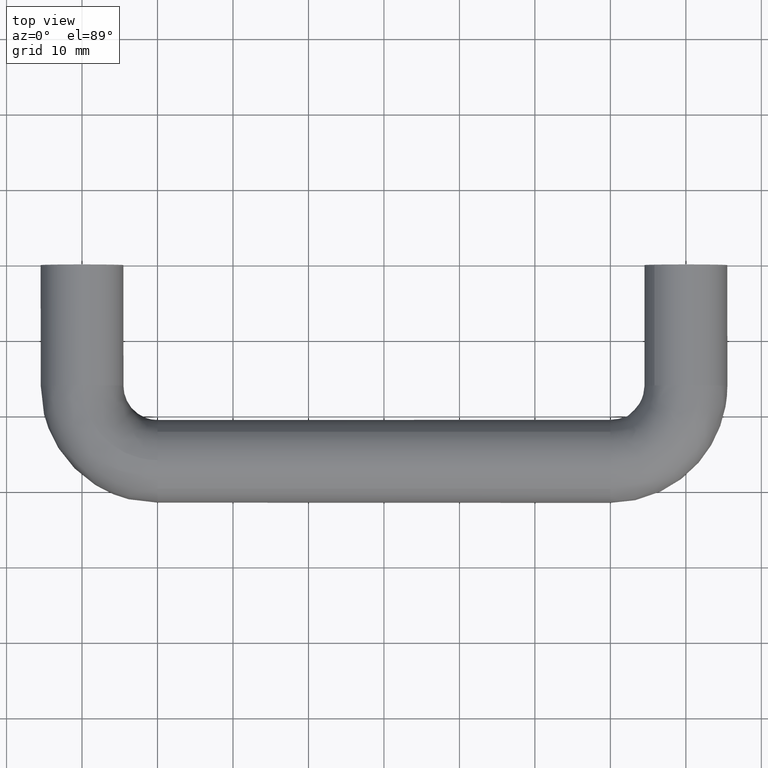
[diagram: clean part render]
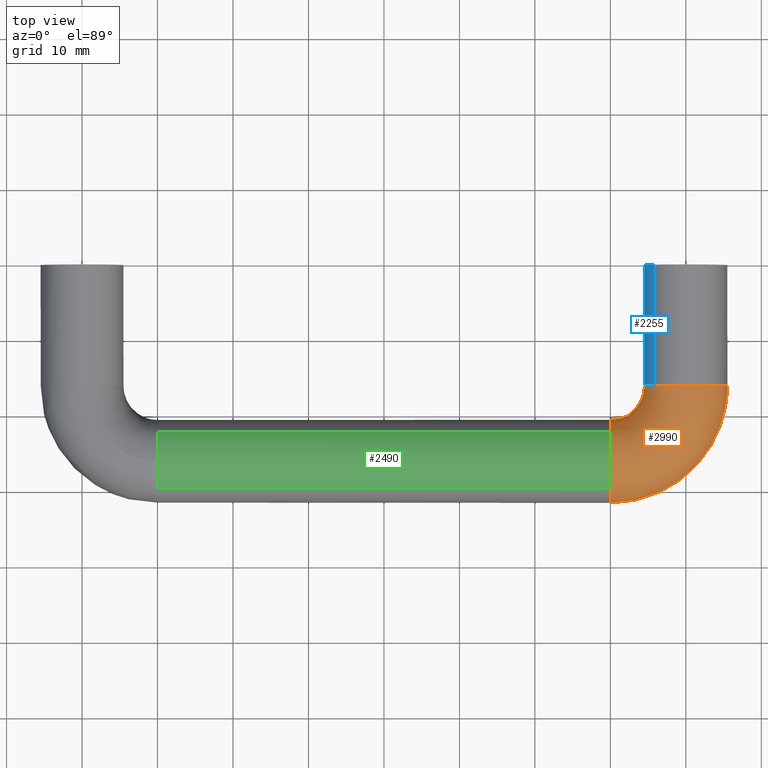
[diagram: same view with three faces highlighted in distinct colors, each labeled with its STEP entity id]
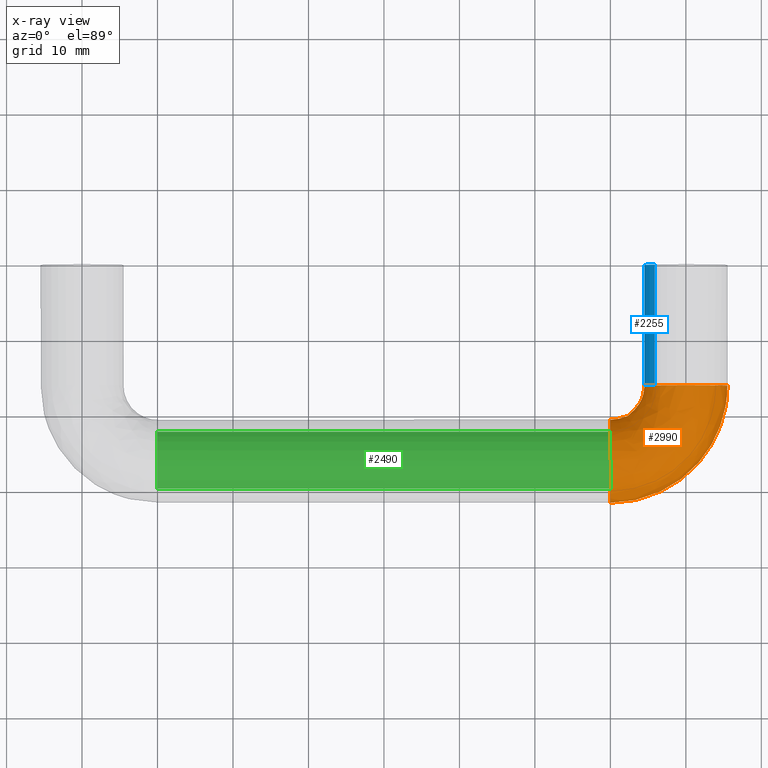
[diagram: x-ray of the same camera — body ghosted, the three highlighted faces saturated]
A machine part, top view with three faces highlighted in distinct colors.
The next image is the same camera in x-ray (body ghosted, the three faces saturated) — at least one of them is partly hidden behind the body in this view.
Their STEP definitions:

[orange] entity #2990 — the highlighted face is a freeform B-spline surface patch.
#2066=CARTESIAN_POINT('',(80.0,-15.999999999971200,5.500000000000000));
#2067=VERTEX_POINT('',#2066);
#2068=CARTESIAN_POINT('',(75.850893732922657,-15.999999999971211,3.610390170672431));
#2069=VERTEX_POINT('',#2068);
#2070=CARTESIAN_POINT('',(80.0,-15.999999999971200,5.500000000000000));
#2071=CARTESIAN_POINT('',(77.495158380550052,-15.999999999971198,5.500000000000000));
#2072=CARTESIAN_POINT('',(75.850893732922657,-15.999999999971216,3.610390170672431));
#2080=(BOUNDED_CURVE()B_SPLINE_CURVE(2,(#2070,#2071,#2072),.UNSPECIFIED.,.F.,.U.)B_SPLINE_CURVE_WITH_KNOTS((3,3),(0.500000000000000,0.635463084393659),.UNSPECIFIED.)CURVE()GEOMETRIC_REPRESENTATION_ITEM()RATIONAL_B_SPLINE_CURVE((1.0,0.841295124726171,0.854579464755573))REPRESENTATION_ITEM(''));
#2081=EDGE_CURVE('',#2067,#2069,#2080,.T.);
#2083=CARTESIAN_POINT('',(85.498263041054457,-15.999999999981890,-0.138215525085154));
#2084=VERTEX_POINT('',#2083);
#2085=CARTESIAN_POINT('',(85.498263041054457,-15.999999999981890,-0.138215525085154));
#2086=CARTESIAN_POINT('',(85.500000000000000,-15.999999999971200,-0.069118676825455));
#2087=CARTESIAN_POINT('',(85.500000000000000,-15.999999999971200,0.0));
#2088=CARTESIAN_POINT('',(85.500000000000000,-15.999999999971205,5.500000000000001));
#2089=CARTESIAN_POINT('',(80.0,-15.999999999971200,5.500000000000000));
#2097=(BOUNDED_CURVE()B_SPLINE_CURVE(2,(#2085,#2086,#2087,#2088,#2089),.UNSPECIFIED.,.F.,.U.)B_SPLINE_CURVE_WITH_KNOTS((3,2,3),(0.245579891760464,0.250000000000000,0.500000000000000),.UNSPECIFIED.)CURVE()GEOMETRIC_REPRESENTATION_ITEM()RATIONAL_B_SPLINE_CURVE((0.989826157660457,0.994821521080874,1.0,0.707106781186548,1.0))REPRESENTATION_ITEM(''));
#2098=EDGE_CURVE('',#2084,#2067,#2097,.T.);
#2115=CARTESIAN_POINT('',(79.861784474649951,-16.000000000414630,-5.498263041047800));
#2116=VERTEX_POINT('',#2115);
#2130=CARTESIAN_POINT('',(74.525320908992796,-15.999999999971200,0.527151638988686));
#2131=VERTEX_POINT('',#2130);
#2132=CARTESIAN_POINT('',(74.525320908992796,-15.999999999971198,0.527151638988686));
#2133=CARTESIAN_POINT('',(74.500000000000014,-15.999999999971200,0.264183944796869));
#2134=CARTESIAN_POINT('',(74.500000000000000,-15.999999999971200,0.0));
#2135=CARTESIAN_POINT('',(74.500000000000000,-15.999999999971196,-5.363478318190148));
#2136=CARTESIAN_POINT('',(79.861784474649951,-16.000000000414630,-5.498263041047800));
#2144=(BOUNDED_CURVE()B_SPLINE_CURVE(2,(#2132,#2133,#2134,#2135,#2136),.UNSPECIFIED.,.F.,.U.)B_SPLINE_CURVE_WITH_KNOTS((3,2,3),(0.733348904757510,0.750000000000000,0.995579891743605),.UNSPECIFIED.)CURVE()GEOMETRIC_REPRESENTATION_ITEM()RATIONAL_B_SPLINE_CURVE((0.963582689676648,0.980492028470631,1.0,0.712285260125425,0.989826157622351))REPRESENTATION_ITEM(''));
#2145=EDGE_CURVE('',#2131,#2116,#2144,.T.);
#2225=CARTESIAN_POINT('',(75.850893732922657,-15.999999999971216,3.610390170672431));
#2226=CARTESIAN_POINT('',(74.694208117647236,-15.999999999971200,2.281112361765168));
#2227=CARTESIAN_POINT('',(74.525320908992796,-15.999999999971200,0.527151638988686));
#2235=(BOUNDED_CURVE()B_SPLINE_CURVE(2,(#2225,#2226,#2227),.UNSPECIFIED.,.F.,.U.)B_SPLINE_CURVE_WITH_KNOTS((3,3),(0.635463084393659,0.733348904757509),.UNSPECIFIED.)CURVE()GEOMETRIC_REPRESENTATION_ITEM()RATIONAL_B_SPLINE_CURVE((0.854579464755573,0.864178748040689,0.963582689676646))REPRESENTATION_ITEM(''));
#2236=EDGE_CURVE('',#2069,#2131,#2235,.T.);
#2286=CARTESIAN_POINT('',(70.000000000080860,-31.498263041026028,-0.138215525071287));
#2287=VERTEX_POINT('',#2286);
#2288=CARTESIAN_POINT('',(70.0,-29.695980075800492,4.073049383333469));
#2289=VERTEX_POINT('',#2288);
#2290=CARTESIAN_POINT('',(70.000000000080860,-31.498263041026036,-0.138215525071287));
#2291=CARTESIAN_POINT('',(70.0,-31.499999999971251,-0.069118676811581));
#2292=CARTESIAN_POINT('',(70.0,-31.499999999971251,0.0));
#2293=CARTESIAN_POINT('',(69.999999999999986,-31.499999999971248,2.436039598125889));
#2294=CARTESIAN_POINT('',(70.0,-29.695980075800481,4.073049383333469));
#2302=(BOUNDED_CURVE()B_SPLINE_CURVE(2,(#2290,#2291,#2292,#2293,#2294),.UNSPECIFIED.,.F.,.U.)B_SPLINE_CURVE_WITH_KNOTS((3,2,3),(0.245579891761347,0.250000000000000,0.382319047793504),.UNSPECIFIED.)CURVE()GEOMETRIC_REPRESENTATION_ITEM()RATIONAL_B_SPLINE_CURVE((0.989826157662452,0.994821521081908,1.0,0.844978592725718,0.854055465436572))REPRESENTATION_ITEM(''));
#2303=EDGE_CURVE('',#2287,#2289,#2302,.T.);
#2361=CARTESIAN_POINT('',(70.0,-22.144999046176800,3.922877470205262));
#2362=VERTEX_POINT('',#2361);
#2368=CARTESIAN_POINT('',(70.000000000679393,-25.861784474253859,-5.498263041038566));
#2369=VERTEX_POINT('',#2368);
#2370=CARTESIAN_POINT('',(70.0,-22.144999046176789,3.922877470205263));
#2371=CARTESIAN_POINT('',(69.999999999999986,-20.499999999971248,2.306341409431673));
#2372=CARTESIAN_POINT('',(70.0,-20.499999999971251,0.0));
#2373=CARTESIAN_POINT('',(70.0,-20.499999999971244,-5.363478317473301));
#2374=CARTESIAN_POINT('',(70.000000000679393,-25.861784474253859,-5.498263041038567));
#2382=(BOUNDED_CURVE()B_SPLINE_CURVE(2,(#2370,#2371,#2372,#2373,#2374),.UNSPECIFIED.,.F.,.U.)B_SPLINE_CURVE_WITH_KNOTS((3,2,3),(0.623683242420083,0.750000000000000,0.995579891720226),.UNSPECIFIED.)CURVE()GEOMETRIC_REPRESENTATION_ITEM()RATIONAL_B_SPLINE_CURVE((0.853569641251226,0.852010713129358,1.0,0.712285260152816,0.989826157569507))REPRESENTATION_ITEM(''));
#2383=EDGE_CURVE('',#2362,#2369,#2382,.T.);
#2430=CARTESIAN_POINT('',(70.0,-25.999999999971251,5.500000000000000));
#2431=VERTEX_POINT('',#2430);
#2432=CARTESIAN_POINT('',(70.0,-29.695980075800485,4.073049383333469));
#2433=CARTESIAN_POINT('',(70.0,-28.123449864597333,5.500000000000000));
#2434=CARTESIAN_POINT('',(70.0,-25.999999999971251,5.500000000000000));
#2442=(BOUNDED_CURVE()B_SPLINE_CURVE(2,(#2432,#2433,#2434),.UNSPECIFIED.,.F.,.U.)B_SPLINE_CURVE_WITH_KNOTS((3,3),(0.382319047793504,0.500000000000000),.UNSPECIFIED.)CURVE()GEOMETRIC_REPRESENTATION_ITEM()RATIONAL_B_SPLINE_CURVE((0.854055465436572,0.862128188460829,1.0))REPRESENTATION_ITEM(''));
#2443=EDGE_CURVE('',#2289,#2431,#2442,.T.);
#2445=CARTESIAN_POINT('',(70.0,-25.999999999971251,5.500000000000000));
#2446=CARTESIAN_POINT('',(70.0,-23.749890591881119,5.500000000000000));
#2447=CARTESIAN_POINT('',(70.0,-22.144999046176792,3.922877470205262));
#2455=(BOUNDED_CURVE()B_SPLINE_CURVE(2,(#2445,#2446,#2447),.UNSPECIFIED.,.F.,.U.)B_SPLINE_CURVE_WITH_KNOTS((3,3),(0.500000000000000,0.623683242420083),.UNSPECIFIED.)CURVE()GEOMETRIC_REPRESENTATION_ITEM()RATIONAL_B_SPLINE_CURVE((1.0,0.855096068057190,0.853569641251226))REPRESENTATION_ITEM(''));
#2456=EDGE_CURVE('',#2431,#2362,#2455,.T.);
#2919=CARTESIAN_POINT('',(68.919598291486125,-31.457644290596907,-0.253887796015538));
#2920=CARTESIAN_POINT('',(86.693699046669153,-32.699953174289085,-0.253887796015538));
#2921=CARTESIAN_POINT('',(85.458047892143597,-14.925388334546314,-0.253887796015538));
#2922=CARTESIAN_POINT('',(68.919497363969512,-31.459088292062869,-0.196304761404404));
#2923=CARTESIAN_POINT('',(86.695258516239178,-32.701513228098811,-0.196304761404404));
#2924=CARTESIAN_POINT('',(85.459491931312670,-14.925287947916170,-0.196304761404404));
#2925=CARTESIAN_POINT('',(68.909758578221641,-31.598424137912399,5.360047516119791));
#2926=CARTESIAN_POINT('',(86.845736210853801,-32.852047297679022,5.360047516119792));
#2927=CARTESIAN_POINT('',(85.598831415243041,-14.915601353856522,5.360047516119793));
#2928=CARTESIAN_POINT('',(69.293120732935336,-26.113542195062646,5.498263041058148));
#2929=CARTESIAN_POINT('',(80.922261279038167,-26.926353195130552,5.498263041058149));
#2930=CARTESIAN_POINT('',(80.113806261265097,-15.296909010343294,5.498263041058149));
#2931=CARTESIAN_POINT('',(69.676482887649001,-20.628660252212892,5.636478565996506));
#2932=CARTESIAN_POINT('',(74.998786347222591,-21.000659092582119,5.636478565996505));
#2933=CARTESIAN_POINT('',(74.628781107287196,-15.678216666830076,5.636478565996506));
#2934=CARTESIAN_POINT('',(69.686119858645029,-20.490781101780328,0.138215524938358));
#2935=CARTESIAN_POINT('',(74.849881831187886,-20.851698790957432,0.138215524938358));
#2936=CARTESIAN_POINT('',(74.490898356808358,-15.687801991779203,0.138215524938358));
#2937=CARTESIAN_POINT('',(69.695756829641070,-20.352901951347754,-5.360047516119790));
#2938=CARTESIAN_POINT('',(74.700977315153224,-20.702738489332752,-5.360047516119790));
#2939=CARTESIAN_POINT('',(74.353015606329535,-15.697387316728337,-5.360047516119790));
#2940=CARTESIAN_POINT('',(69.308346282331001,-25.895705510028311,-5.499722628816053));
#2941=CARTESIAN_POINT('',(80.687005505718744,-26.691009285584904,-5.499722628816049));
#2942=CARTESIAN_POINT('',(79.895963888480736,-15.312052963619367,-5.499722628816052));
#2943=CARTESIAN_POINT('',(69.304333152370518,-25.953122612326769,-5.501169503154882));
#2944=CARTESIAN_POINT('',(80.749013908026441,-26.753040918721311,-5.501169503154880));
#2945=CARTESIAN_POINT('',(79.953382489948737,-15.308061340655044,-5.501169503154881));
#2953=(BOUNDED_SURFACE()B_SPLINE_SURFACE(2,2,((#2919,#2922,#2925,#2928,#2931,#2934,#2937,#2940,#2943),(#2920,#2923,#2926,#2929,#2932,#2935,#2938,#2941,#2944),(#2921,#2924,#2927,#2930,#2933,#2936,#2939,#2942,#2945)),.UNSPECIFIED.,.F.,.F.,.U.)B_SPLINE_SURFACE_WITH_KNOTS((3,3),(3,1,2,2,1,3),(0.0,28.240914246448849),(0.0,0.136753001415787,9.249451373623883,18.362149745831982,27.474848118040072,27.611538901172050),.UNSPECIFIED.)GEOMETRIC_REPRESENTATION_ITEM()RATIONAL_B_SPLINE_SURFACE(((0.924777941613765,0.920748586625579,0.648218385134922,0.916719231637393,0.648218385134922,0.916719231637393,0.648218385134922,0.920746753396694,0.924774275155996),(0.608549935560647,0.605898419333809,0.426559975916722,0.603246903106969,0.426559975916722,0.603246903106969,0.426559975916722,0.605897212977916,0.608547522848862),(0.929928938858543,0.925877140432307,0.651828950402101,0.921825342006071,0.651828950402101,0.921825342006071,0.651828950402101,0.925875296992369,0.929925251978667)))REPRESENTATION_ITEM('')SURFACE());
#2954=ORIENTED_EDGE('',*,*,#2098,.T.);
#2955=ORIENTED_EDGE('',*,*,#2081,.T.);
#2956=ORIENTED_EDGE('',*,*,#2236,.T.);
#2957=ORIENTED_EDGE('',*,*,#2145,.T.);
#2958=CARTESIAN_POINT('',(70.000000000679393,-25.861784474253863,-5.498263041038566));
#2959=CARTESIAN_POINT('',(79.861784474174769,-25.861784473674032,-5.498263041058149));
#2960=CARTESIAN_POINT('',(79.861784474649951,-16.000000000414641,-5.498263041047800));
#2968=(BOUNDED_CURVE()B_SPLINE_CURVE(2,(#2958,#2959,#2960),.UNSPECIFIED.,.F.,.U.)B_SPLINE_CURVE_WITH_KNOTS((3,3),(-1.733067862589971,-0.253787686536004),.UNSPECIFIED.)CURVE()GEOMETRIC_REPRESENTATION_ITEM()RATIONAL_B_SPLINE_CURVE((0.889551170275522,0.630646846361811,0.894193516967318))REPRESENTATION_ITEM(''));
#2969=EDGE_CURVE('',#2369,#2116,#2968,.T.);
#2970=ORIENTED_EDGE('',*,*,#2969,.F.);
#2971=ORIENTED_EDGE('',*,*,#2383,.F.);
#2972=ORIENTED_EDGE('',*,*,#2456,.F.);
#2973=ORIENTED_EDGE('',*,*,#2443,.F.);
#2974=ORIENTED_EDGE('',*,*,#2303,.F.);
#2975=CARTESIAN_POINT('',(70.000000000080860,-31.498263041026036,-0.138215525071287));
#2976=CARTESIAN_POINT('',(85.498263041036793,-31.498263040867638,-0.138215524938356));
#2977=CARTESIAN_POINT('',(85.498263041054457,-15.999999999981888,-0.138215525085154));
#2985=(BOUNDED_CURVE()B_SPLINE_CURVE(2,(#2975,#2976,#2977),.UNSPECIFIED.,.F.,.U.)B_SPLINE_CURVE_WITH_KNOTS((3,3),(-1.733067862722835,-0.253787686443136),.UNSPECIFIED.)CURVE()GEOMETRIC_REPRESENTATION_ITEM()RATIONAL_B_SPLINE_CURVE((0.889551170322030,0.630646846321886,0.894193517000408))REPRESENTATION_ITEM(''));
#2986=EDGE_CURVE('',#2287,#2084,#2985,.T.);
#2987=ORIENTED_EDGE('',*,*,#2986,.T.);
#2988=EDGE_LOOP('',(#2954,#2955,#2956,#2957,#2970,#2971,#2972,#2973,#2974,#2987));
#2989=FACE_OUTER_BOUND('',#2988,.T.);
#2990=ADVANCED_FACE('',(#2989),#2953,.T.);

[blue] entity #2255 — the highlighted face is a freeform B-spline surface patch.
#2068=CARTESIAN_POINT('',(75.850893732922657,-15.999999999971211,3.610390170672431));
#2069=VERTEX_POINT('',#2068);
#2130=CARTESIAN_POINT('',(74.525320908992796,-15.999999999971200,0.527151638988686));
#2131=VERTEX_POINT('',#2130);
#2147=CARTESIAN_POINT('',(74.525320908992796,-3.885781E-016,0.527151638988686));
#2148=VERTEX_POINT('',#2147);
#2149=CARTESIAN_POINT('',(74.525320908992796,-15.999999999971200,0.527151638988686));
#2150=CARTESIAN_POINT('',(74.525320908992796,-3.885781E-016,0.527151638988686));
#2151=QUASI_UNIFORM_CURVE('',1,(#2149,#2150),.UNSPECIFIED.,.F.,.U.);
#2152=EDGE_CURVE('',#2131,#2148,#2151,.T.);
#2188=CARTESIAN_POINT('',(75.850893759727001,-4.198484E-016,3.610390201476344));
#2189=VERTEX_POINT('',#2188);
#2203=CARTESIAN_POINT('',(75.850893732922657,-15.999999999971211,3.610390170672431));
#2204=CARTESIAN_POINT('',(75.850893759727001,-4.198484E-016,3.610390201476344));
#2205=QUASI_UNIFORM_CURVE('',1,(#2203,#2204),.UNSPECIFIED.,.F.,.U.);
#2206=EDGE_CURVE('',#2069,#2189,#2205,.T.);
#2211=CARTESIAN_POINT('',(74.525320908980518,-16.400000000424999,0.527151638861234));
#2212=CARTESIAN_POINT('',(74.694208296636489,-16.400000000424999,2.281114221495737));
#2213=CARTESIAN_POINT('',(75.850895957594972,-16.400000000424999,3.610392727294113));
#2214=CARTESIAN_POINT('',(74.525320908980518,0.410000000010624,0.527151638861234));
#2215=CARTESIAN_POINT('',(74.694208296636489,0.410000000010624,2.281114221495737));
#2216=CARTESIAN_POINT('',(75.850895957594972,0.410000000010625,3.610392727294113));
#2224=(BOUNDED_SURFACE()B_SPLINE_SURFACE(2,1,((#2211,#2214),(#2212,#2215),(#2213,#2216)),.UNSPECIFIED.,.F.,.F.,.U.)B_SPLINE_SURFACE_WITH_KNOTS((3,3),(2,2),(0.0,3.620233990688279),(0.0,16.810000000435629),.UNSPECIFIED.)GEOMETRIC_REPRESENTATION_ITEM()RATIONAL_B_SPLINE_SURFACE(((1.0,1.0),(0.882842712474619,0.882842712474619),(0.859411254969543,0.859411254969543)))REPRESENTATION_ITEM('')SURFACE());
#2225=CARTESIAN_POINT('',(75.850893732922657,-15.999999999971216,3.610390170672431));
#2226=CARTESIAN_POINT('',(74.694208117647236,-15.999999999971200,2.281112361765168));
#2227=CARTESIAN_POINT('',(74.525320908992796,-15.999999999971200,0.527151638988686));
#2235=(BOUNDED_CURVE()B_SPLINE_CURVE(2,(#2225,#2226,#2227),.UNSPECIFIED.,.F.,.U.)B_SPLINE_CURVE_WITH_KNOTS((3,3),(0.635463084393659,0.733348904757509),.UNSPECIFIED.)CURVE()GEOMETRIC_REPRESENTATION_ITEM()RATIONAL_B_SPLINE_CURVE((0.854579464755573,0.864178748040689,0.963582689676646))REPRESENTATION_ITEM(''));
#2236=EDGE_CURVE('',#2069,#2131,#2235,.T.);
#2237=ORIENTED_EDGE('',*,*,#2236,.F.);
#2238=ORIENTED_EDGE('',*,*,#2206,.T.);
#2239=CARTESIAN_POINT('',(75.850893759727001,-4.198484E-016,3.610390201476344));
#2240=CARTESIAN_POINT('',(74.694208119804927,0.0,2.281112384173726));
#2241=CARTESIAN_POINT('',(74.525320908992796,-3.885781E-016,0.527151638988686));
#2249=(BOUNDED_CURVE()B_SPLINE_CURVE(2,(#2239,#2240,#2241),.UNSPECIFIED.,.F.,.U.)B_SPLINE_CURVE_WITH_KNOTS((3,3),(0.635463083272083,0.733348904757510),.UNSPECIFIED.)CURVE()GEOMETRIC_REPRESENTATION_ITEM()RATIONAL_B_SPLINE_CURVE((0.854579464535596,0.864178746901719,0.963582689676648))REPRESENTATION_ITEM(''));
#2250=EDGE_CURVE('',#2189,#2148,#2249,.T.);
#2251=ORIENTED_EDGE('',*,*,#2250,.T.);
#2252=ORIENTED_EDGE('',*,*,#2152,.F.);
#2253=EDGE_LOOP('',(#2237,#2238,#2251,#2252));
#2254=FACE_OUTER_BOUND('',#2253,.T.);
#2255=ADVANCED_FACE('',(#2254),#2224,.T.);

[green] entity #2490 — the highlighted face is a freeform B-spline surface patch.
#2288=CARTESIAN_POINT('',(70.0,-29.695980075800492,4.073049383333469));
#2289=VERTEX_POINT('',#2288);
#2305=CARTESIAN_POINT('',(9.999991609832343,-29.682214072074430,4.058033287754828));
#2306=VERTEX_POINT('',#2305);
#2307=CARTESIAN_POINT('',(9.999991609832343,-29.682214072074430,4.058033287754828));
#2308=CARTESIAN_POINT('',(70.0,-29.695980075800492,4.073049383333469));
#2309=QUASI_UNIFORM_CURVE('',1,(#2307,#2308),.UNSPECIFIED.,.F.,.U.);
#2310=EDGE_CURVE('',#2306,#2289,#2309,.T.);
#2344=CARTESIAN_POINT('',(9.999991549384397,-22.144999046298249,3.922877470324082));
#2345=VERTEX_POINT('',#2344);
#2361=CARTESIAN_POINT('',(70.0,-22.144999046176800,3.922877470205262));
#2362=VERTEX_POINT('',#2361);
#2363=CARTESIAN_POINT('',(9.999991549384397,-22.144999046298249,3.922877470324082));
#2364=CARTESIAN_POINT('',(70.0,-22.144999046176800,3.922877470205262));
#2365=QUASI_UNIFORM_CURVE('',1,(#2363,#2364),.UNSPECIFIED.,.F.,.U.);
#2366=EDGE_CURVE('',#2345,#2362,#2365,.T.);
#2416=CARTESIAN_POINT('',(8.499990087456915,-22.144999046322020,3.922877470347999));
#2417=CARTESIAN_POINT('',(8.499990087456917,-25.849581879754403,7.563360881747373));
#2418=CARTESIAN_POINT('',(8.499990087456915,-29.695980075795433,4.073049383338036));
#2419=CARTESIAN_POINT('',(71.537500248509957,-22.144999046322020,3.922877470347999));
#2420=CARTESIAN_POINT('',(71.537500248509971,-25.849581879754403,7.563360881747373));
#2421=CARTESIAN_POINT('',(71.537500248509971,-29.695980075795433,4.073049383338036));
#2429=(BOUNDED_SURFACE()B_SPLINE_SURFACE(2,1,((#2416,#2419),(#2417,#2420),(#2418,#2421)),.UNSPECIFIED.,.F.,.F.,.U.)B_SPLINE_SURFACE_WITH_KNOTS((3,3),(2,2),(0.0,8.745789572898351),(0.0,63.037510161053049),.UNSPECIFIED.)GEOMETRIC_REPRESENTATION_ITEM()RATIONAL_B_SPLINE_SURFACE(((1.0,1.0),(0.718822509939086,0.718822509939086),(0.977505800795127,0.977505800795127)))REPRESENTATION_ITEM('')SURFACE());
#2430=CARTESIAN_POINT('',(70.0,-25.999999999971251,5.500000000000000));
#2431=VERTEX_POINT('',#2430);
#2432=CARTESIAN_POINT('',(70.0,-29.695980075800485,4.073049383333469));
#2433=CARTESIAN_POINT('',(70.0,-28.123449864597333,5.500000000000000));
#2434=CARTESIAN_POINT('',(70.0,-25.999999999971251,5.500000000000000));
#2442=(BOUNDED_CURVE()B_SPLINE_CURVE(2,(#2432,#2433,#2434),.UNSPECIFIED.,.F.,.U.)B_SPLINE_CURVE_WITH_KNOTS((3,3),(0.382319047793504,0.500000000000000),.UNSPECIFIED.)CURVE()GEOMETRIC_REPRESENTATION_ITEM()RATIONAL_B_SPLINE_CURVE((0.854055465436572,0.862128188460829,1.0))REPRESENTATION_ITEM(''));
#2443=EDGE_CURVE('',#2289,#2431,#2442,.T.);
#2444=ORIENTED_EDGE('',*,*,#2443,.T.);
#2445=CARTESIAN_POINT('',(70.0,-25.999999999971251,5.500000000000000));
#2446=CARTESIAN_POINT('',(70.0,-23.749890591881119,5.500000000000000));
#2447=CARTESIAN_POINT('',(70.0,-22.144999046176792,3.922877470205262));
#2455=(BOUNDED_CURVE()B_SPLINE_CURVE(2,(#2445,#2446,#2447),.UNSPECIFIED.,.F.,.U.)B_SPLINE_CURVE_WITH_KNOTS((3,3),(0.500000000000000,0.623683242420083),.UNSPECIFIED.)CURVE()GEOMETRIC_REPRESENTATION_ITEM()RATIONAL_B_SPLINE_CURVE((1.0,0.855096068057190,0.853569641251226))REPRESENTATION_ITEM(''));
#2456=EDGE_CURVE('',#2431,#2362,#2455,.T.);
#2457=ORIENTED_EDGE('',*,*,#2456,.T.);
#2458=ORIENTED_EDGE('',*,*,#2366,.F.);
#2459=CARTESIAN_POINT('',(9.999990329242831,-25.930897648495300,5.499565879676656));
#2460=VERTEX_POINT('',#2459);
#2461=CARTESIAN_POINT('',(9.999990329242831,-25.930897648495296,5.499565879676656));
#2462=CARTESIAN_POINT('',(9.999990826313388,-23.721194920302686,5.471800841869817));
#2463=CARTESIAN_POINT('',(9.999991549384397,-22.144999046298246,3.922877470324082));
#2471=(BOUNDED_CURVE()B_SPLINE_CURVE(2,(#2461,#2462,#2463),.UNSPECIFIED.,.F.,.U.)B_SPLINE_CURVE_WITH_KNOTS((3,3),(0.502215356541157,0.623683242410545),.UNSPECIFIED.)CURVE()GEOMETRIC_REPRESENTATION_ITEM()RATIONAL_B_SPLINE_CURVE((0.994855095540742,0.855068727423281,0.853569641251461))REPRESENTATION_ITEM(''));
#2472=EDGE_CURVE('',#2460,#2345,#2471,.T.);
#2473=ORIENTED_EDGE('',*,*,#2472,.F.);
#2474=CARTESIAN_POINT('',(9.999991609832343,-29.682214072074427,4.058033287754828));
#2475=CARTESIAN_POINT('',(9.999990329242833,-28.086500754684973,5.507060477314025));
#2476=CARTESIAN_POINT('',(9.999990329242831,-25.930897648495300,5.499565879676656));
#2484=(BOUNDED_CURVE()B_SPLINE_CURVE(2,(#2474,#2475,#2476),.UNSPECIFIED.,.F.,.U.)B_SPLINE_CURVE_WITH_KNOTS((3,3),(0.381113054492791,0.500000000000000),.UNSPECIFIED.)CURVE()GEOMETRIC_REPRESENTATION_ITEM()RATIONAL_B_SPLINE_CURVE((0.853903638726723,0.860715279421977,1.0))REPRESENTATION_ITEM(''));
#2485=EDGE_CURVE('',#2306,#2460,#2484,.T.);
#2486=ORIENTED_EDGE('',*,*,#2485,.F.);
#2487=ORIENTED_EDGE('',*,*,#2310,.T.);
#2488=EDGE_LOOP('',(#2444,#2457,#2458,#2473,#2486,#2487));
#2489=FACE_OUTER_BOUND('',#2488,.T.);
#2490=ADVANCED_FACE('',(#2489),#2429,.T.);